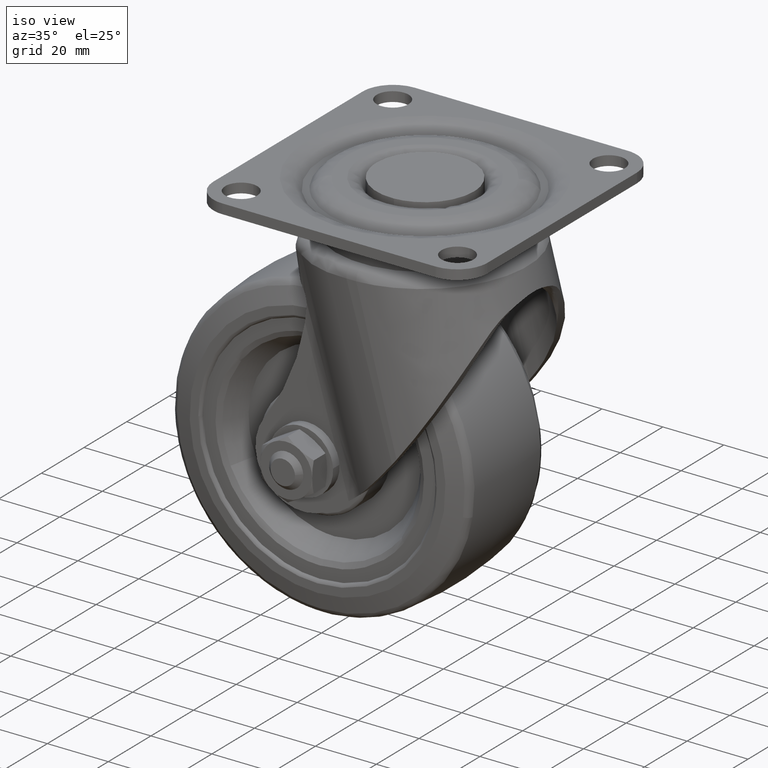
[diagram: clean part render]
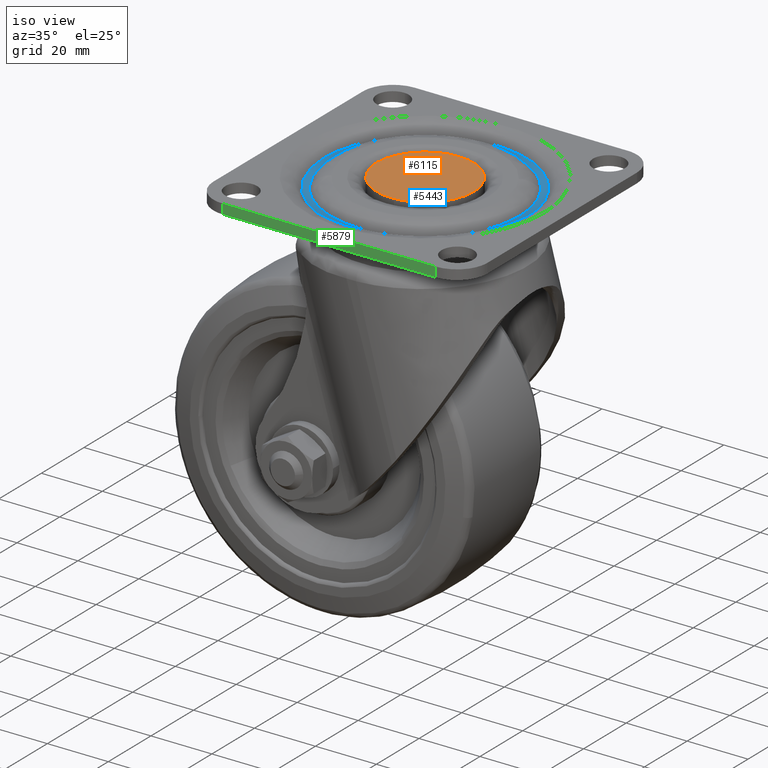
[diagram: same view with three faces highlighted in distinct colors, each labeled with its STEP entity id]
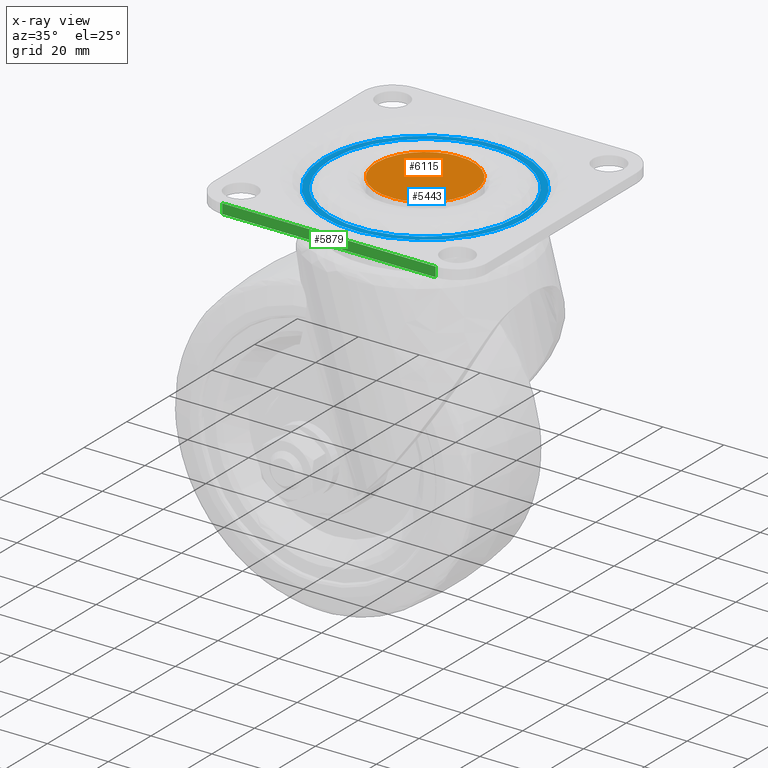
[diagram: x-ray of the same camera — body ghosted, the three highlighted faces saturated]
A machine part, iso view with three faces highlighted in distinct colors.
The next image is the same camera in x-ray (body ghosted, the three faces saturated) — at least one of them is partly hidden behind the body in this view.
Their STEP definitions:

[orange] entity #6115 — the highlighted face is a freeform B-spline surface patch.
#6044=CARTESIAN_POINT('',(-17.598399937977788,-17.598006196946820,0.0));
#6045=CARTESIAN_POINT('',(17.598400796284679,-17.598006196946820,0.0));
#6046=CARTESIAN_POINT('',(-17.598399937977788,17.598005624742228,0.0));
#6047=CARTESIAN_POINT('',(17.598400796284679,17.598005624742228,0.0));
#6048=B_SPLINE_SURFACE_WITH_KNOTS('',1,1,((#6044,#6046),(#6045,#6047)),.UNSPECIFIED.,.F.,.F.,.U.,(2,2),(2,2),(0.0,35.196800734262467),(0.0,35.196011821689048),.UNSPECIFIED.);
#6049=CARTESIAN_POINT('',(0.976776632656301,-15.970156774743840,7.771561E-016));
#6050=VERTEX_POINT('',#6049);
#6051=CARTESIAN_POINT('',(-16.0,0.0,0.0));
#6052=VERTEX_POINT('',#6051);
#6053=CARTESIAN_POINT('',(0.976776632656305,-15.970156774743845,0.0));
#6054=CARTESIAN_POINT('',(0.488844212826857,-15.999999999999998,0.0));
#6055=CARTESIAN_POINT('',(0.0,-16.0,0.0));
#6056=CARTESIAN_POINT('',(-15.999999999999998,-15.999999999999998,0.0));
#6057=CARTESIAN_POINT('',(-16.0,0.0,0.0));
#6065=(BOUNDED_CURVE()B_SPLINE_CURVE(2,(#6053,#6054,#6055,#6056,#6057),.UNSPECIFIED.,.F.,.U.)B_SPLINE_CURVE_WITH_KNOTS((3,2,3),(0.739332962240903,0.750000000000000,1.0),.UNSPECIFIED.)CURVE()GEOMETRIC_REPRESENTATION_ITEM()RATIONAL_B_SPLINE_CURVE((0.976072041670919,0.987502787902134,1.0,0.707106781186548,1.0))REPRESENTATION_ITEM(''));
#6066=EDGE_CURVE('',#6050,#6052,#6065,.T.);
#6067=ORIENTED_EDGE('',*,*,#6066,.F.);
#6068=CARTESIAN_POINT('',(16.0,0.0,0.0));
#6069=VERTEX_POINT('',#6068);
#6070=CARTESIAN_POINT('',(16.0,0.0,0.0));
#6071=CARTESIAN_POINT('',(16.0,-15.051297070398030,0.0));
#6072=CARTESIAN_POINT('',(0.976776632656305,-15.970156774743845,0.0));
#6080=(BOUNDED_CURVE()B_SPLINE_CURVE(2,(#6070,#6071,#6072),.UNSPECIFIED.,.F.,.U.)B_SPLINE_CURVE_WITH_KNOTS((3,3),(0.500000000000000,0.739332962240903),.UNSPECIFIED.)CURVE()GEOMETRIC_REPRESENTATION_ITEM()RATIONAL_B_SPLINE_CURVE((1.0,0.719603993284414,0.976072041670919))REPRESENTATION_ITEM(''));
#6081=EDGE_CURVE('',#6069,#6050,#6080,.T.);
#6082=ORIENTED_EDGE('',*,*,#6081,.F.);
#6083=CARTESIAN_POINT('',(-0.976776632656301,15.970156774743840,7.771561E-016));
#6084=VERTEX_POINT('',#6083);
#6085=CARTESIAN_POINT('',(-0.976776632656300,15.970156774743845,0.0));
#6086=CARTESIAN_POINT('',(-0.488844212826855,15.999999999999998,0.0));
#6087=CARTESIAN_POINT('',(0.0,16.0,0.0));
#6088=CARTESIAN_POINT('',(15.999999999999998,15.999999999999998,0.0));
#6089=CARTESIAN_POINT('',(16.0,0.0,0.0));
#6097=(BOUNDED_CURVE()B_SPLINE_CURVE(2,(#6085,#6086,#6087,#6088,#6089),.UNSPECIFIED.,.F.,.U.)B_SPLINE_CURVE_WITH_KNOTS((3,2,3),(0.239332962240903,0.250000000000000,0.500000000000000),.UNSPECIFIED.)CURVE()GEOMETRIC_REPRESENTATION_ITEM()RATIONAL_B_SPLINE_CURVE((0.976072041670919,0.987502787902134,1.0,0.707106781186548,1.0))REPRESENTATION_ITEM(''));
#6098=EDGE_CURVE('',#6084,#6069,#6097,.T.);
#6099=ORIENTED_EDGE('',*,*,#6098,.F.);
#6100=CARTESIAN_POINT('',(-16.0,0.0,0.0));
#6101=CARTESIAN_POINT('',(-16.0,15.051297070398030,0.0));
#6102=CARTESIAN_POINT('',(-0.976776632656300,15.970156774743845,0.0));
#6110=(BOUNDED_CURVE()B_SPLINE_CURVE(2,(#6100,#6101,#6102),.UNSPECIFIED.,.F.,.U.)B_SPLINE_CURVE_WITH_KNOTS((3,3),(0.0,0.239332962240903),.UNSPECIFIED.)CURVE()GEOMETRIC_REPRESENTATION_ITEM()RATIONAL_B_SPLINE_CURVE((1.0,0.719603993284414,0.976072041670919))REPRESENTATION_ITEM(''));
#6111=EDGE_CURVE('',#6052,#6084,#6110,.T.);
#6112=ORIENTED_EDGE('',*,*,#6111,.F.);
#6113=EDGE_LOOP('',(#6067,#6082,#6099,#6112));
#6114=FACE_OUTER_BOUND('',#6113,.T.);
#6115=ADVANCED_FACE('',(#6114),#6048,.T.);

[blue] entity #5443 — the highlighted face is a freeform B-spline surface patch.
#5196=CARTESIAN_POINT('',(-26.258598482833449,-16.664213323730671,-3.199999999539002));
#5197=VERTEX_POINT('',#5196);
#5211=CARTESIAN_POINT('',(31.100000000000001,0.0,-3.200000000000000));
#5212=VERTEX_POINT('',#5211);
#5213=CARTESIAN_POINT('',(31.100000000000001,0.0,-3.200000000000000));
#5214=CARTESIAN_POINT('',(31.100099852153871,-1.616940139729805,-3.199999999996508));
#5215=CARTESIAN_POINT('',(30.843172785645670,-4.902941261985788,-3.199999999987558));
#5216=CARTESIAN_POINT('',(29.813442720957120,-9.176202850278283,-3.199999999970697));
#5217=CARTESIAN_POINT('',(28.416291401550382,-12.780056420852040,-3.199999999952604));
#5218=CARTESIAN_POINT('',(26.957794119230471,-15.612824798135840,-3.199999999935648));
#5219=CARTESIAN_POINT('',(25.108759989629672,-18.459241092730270,-3.199999999915912));
#5220=CARTESIAN_POINT('',(23.087347106923549,-20.924490407575369,-3.199999999895539));
#5221=CARTESIAN_POINT('',(20.670912111553719,-23.307045553169051,-3.199999999872512));
#5222=CARTESIAN_POINT('',(18.188158892664440,-25.305373712027080,-3.199999999849816));
#5223=CARTESIAN_POINT('',(14.971911621751870,-27.353449195943369,-3.199999999821474));
#5224=CARTESIAN_POINT('',(11.661628456582870,-28.916846232307901,-3.199999999793919));
#5225=CARTESIAN_POINT('',(8.139459744392864,-30.076037731729919,-3.199999999764664));
#5226=CARTESIAN_POINT('',(5.024412168514020,-30.747480845117501,-3.199999999740582));
#5227=CARTESIAN_POINT('',(1.650404587588646,-31.117224548191281,-3.199999999714728));
#5228=CARTESIAN_POINT('',(-2.634485446852739,-31.121669930410771,-3.199999999683089));
#5229=CARTESIAN_POINT('',(-7.189492808593015,-30.398241347030339,-3.199999999650408));
#5230=CARTESIAN_POINT('',(-11.755787535294299,-28.892305349411409,-3.199999999620385));
#5231=CARTESIAN_POINT('',(-15.283880791968519,-27.179998086839571,-3.199999999597588));
#5232=CARTESIAN_POINT('',(-18.522402585556701,-25.069126659438471,-3.199999999578258));
#5233=CARTESIAN_POINT('',(-21.215072017089771,-22.831507330522879,-3.199999999563115));
#5234=CARTESIAN_POINT('',(-23.889707213129519,-20.041166497368192,-3.199999999549262));
#5235=CARTESIAN_POINT('',(-25.448161955419710,-17.941407586488101,-3.199999999542252));
#5236=CARTESIAN_POINT('',(-26.258598482833449,-16.664213323730671,-3.199999999539002));
#5237=B_SPLINE_CURVE_WITH_KNOTS('',3,(#5213,#5214,#5215,#5216,#5217,#5218,#5219,#5220,#5221,#5222,#5223,#5224,#5225,#5226,#5227,#5228,#5229,#5230,#5231,#5232,#5233,#5234,#5235,#5236),.UNSPECIFIED.,.F.,.U.,(4,1,1,1,1,1,1,1,1,1,1,1,1,1,1,1,1,1,1,1,1,4),(0.000000013474960,4.850812037312920,9.858079807327599,13.144146318186070,16.430214439563461,19.403331319671370,23.315307637234930,25.975451886807111,29.574468306490740,32.860529787530112,37.398440415161723,40.528028819288863,43.970496759041197,46.943596819460623,50.699049057607567,56.801682658451632,60.713647347853581,65.095051213833955,68.537578477001588,72.293063222381107,75.579113926627230,80.116980359293976),.UNSPECIFIED.);
#5238=EDGE_CURVE('',#5212,#5197,#5237,.T.);
#5240=CARTESIAN_POINT('',(26.258598482833438,16.664213323730671,-3.199999999539001));
#5241=VERTEX_POINT('',#5240);
#5242=CARTESIAN_POINT('',(26.258598482833449,16.664213323730671,-3.199999999539001));
#5243=CARTESIAN_POINT('',(31.099999999874207,9.035385244310730,-3.199999999769501));
#5244=CARTESIAN_POINT('',(31.100000000000001,0.0,-3.200000000000000));
#5252=(BOUNDED_CURVE()B_SPLINE_CURVE(2,(#5242,#5243,#5244),.UNSPECIFIED.,.F.,.U.)B_SPLINE_CURVE_WITH_KNOTS((3,3),(0.408316457331357,0.500000000000000),.UNSPECIFIED.)CURVE()GEOMETRIC_REPRESENTATION_ITEM()RATIONAL_B_SPLINE_CURVE((0.863956829593996,0.892586048302242,1.0))REPRESENTATION_ITEM(''));
#5253=EDGE_CURVE('',#5241,#5212,#5252,.T.);
#5304=CARTESIAN_POINT('',(-31.100000000000019,0.0,-3.199999999999985));
#5305=VERTEX_POINT('',#5304);
#5306=CARTESIAN_POINT('',(-31.100000000000019,0.0,-3.199999999999985));
#5307=CARTESIAN_POINT('',(-31.100189112836709,1.877749752599173,-3.199999999995945));
#5308=CARTESIAN_POINT('',(-30.777784929012789,5.424502962323964,-3.199999999985908));
#5309=CARTESIAN_POINT('',(-29.505487575257831,10.175999355972291,-3.199999999966257));
#5310=CARTESIAN_POINT('',(-27.537279975991879,14.735086035460119,-3.199999999941870));
#5311=CARTESIAN_POINT('',(-25.037001898360611,18.670296727364089,-3.199999999914838));
#5312=CARTESIAN_POINT('',(-22.299860034069749,21.762311321763779,-3.199999999887912));
#5313=CARTESIAN_POINT('',(-19.795546089462039,24.051779625617058,-3.199999999864414));
#5314=CARTESIAN_POINT('',(-17.076656175109509,26.086676187933879,-3.199999999839851));
#5315=CARTESIAN_POINT('',(-13.219243557958260,28.291496198752629,-3.199999999806717));
#5316=CARTESIAN_POINT('',(-8.666314454252634,30.022125204369161,-3.199999999768648));
#5317=CARTESIAN_POINT('',(-4.097921181224185,30.922814971173992,-3.199999999733448));
#5318=CARTESIAN_POINT('',(0.177651452328989,31.185482785327459,-3.199999999701027));
#5319=CARTESIAN_POINT('',(3.882487533686553,30.937077553854628,-3.199999999674086));
#5320=CARTESIAN_POINT('',(7.831303121715517,30.176769374498502,-3.199999999646480));
#5321=CARTESIAN_POINT('',(11.614672380083761,28.960850681482921,-3.199999999621050));
#5322=CARTESIAN_POINT('',(15.377980139698851,27.134352030595920,-3.199999999597102));
#5323=CARTESIAN_POINT('',(18.344951201095899,25.179077808742040,-3.199999999579314));
#5324=CARTESIAN_POINT('',(20.895332891679999,23.102741420623161,-3.199999999564879));
#5325=CARTESIAN_POINT('',(23.565943760017980,20.453445934026568,-3.199999999550843));
#5326=CARTESIAN_POINT('',(25.336393705486721,18.117586786512462,-3.199999999542631));
#5327=CARTESIAN_POINT('',(26.258598482833438,16.664213323730671,-3.199999999539001));
#5328=B_SPLINE_CURVE_WITH_KNOTS('',3,(#5306,#5307,#5308,#5309,#5310,#5311,#5312,#5313,#5314,#5315,#5316,#5317,#5318,#5319,#5320,#5321,#5322,#5323,#5324,#5325,#5326,#5327),.UNSPECIFIED.,.F.,.U.,(4,1,1,1,1,1,1,1,1,1,1,1,1,1,1,1,1,1,1,4),(0.000000013468082,5.633214244687551,10.640483176520720,14.708960601826041,20.498686923316580,24.567141447738770,27.070806520732820,30.669823209381139,34.738287670695136,40.371489336481140,45.222329493124263,48.664904157129527,53.202680765122309,56.332255552106091,60.713647347852401,65.095051213832960,68.850540289917035,71.354194094077911,74.953196567743703,80.116980359294047),.UNSPECIFIED.);
#5329=EDGE_CURVE('',#5305,#5241,#5328,.T.);
#5331=CARTESIAN_POINT('',(-26.258598482833449,-16.664213323730671,-3.199999999539002));
#5332=CARTESIAN_POINT('',(-31.099999999874221,-9.035385244310728,-3.199999999769494));
#5333=CARTESIAN_POINT('',(-31.100000000000019,0.0,-3.199999999999985));
#5341=(BOUNDED_CURVE()B_SPLINE_CURVE(2,(#5331,#5332,#5333),.UNSPECIFIED.,.F.,.U.)B_SPLINE_CURVE_WITH_KNOTS((3,3),(0.908316457331357,1.0),.UNSPECIFIED.)CURVE()GEOMETRIC_REPRESENTATION_ITEM()RATIONAL_B_SPLINE_CURVE((0.863956829593996,0.892586048302242,1.0))REPRESENTATION_ITEM(''));
#5342=EDGE_CURVE('',#5197,#5305,#5341,.T.);
#5348=CARTESIAN_POINT('',(36.571674871110091,-36.560125341814917,-3.200000000000000));
#5349=CARTESIAN_POINT('',(-36.571676654779061,-36.560125341814917,-3.200000000000000));
#5350=CARTESIAN_POINT('',(36.571674871110091,36.560124747446302,-3.200000000000000));
#5351=CARTESIAN_POINT('',(-36.571676654779061,36.560124747446302,-3.200000000000000));
#5352=B_SPLINE_SURFACE_WITH_KNOTS('',1,1,((#5348,#5350),(#5349,#5351)),.UNSPECIFIED.,.F.,.F.,.U.,(2,2),(2,2),(0.0,73.143351525889159),(0.0,73.120250089261219),.UNSPECIFIED.);
#5353=CARTESIAN_POINT('',(28.073903523332060,-17.816240933345782,-3.199999999246640));
#5354=VERTEX_POINT('',#5353);
#5355=CARTESIAN_POINT('',(-33.249999999999979,0.0,-3.199999999999988));
#5356=VERTEX_POINT('',#5355);
#5357=CARTESIAN_POINT('',(28.073903523332060,-17.816240933345782,-3.199999999246640));
#5358=CARTESIAN_POINT('',(26.789399998164249,-19.841150998333109,-3.199999999254557));
#5359=CARTESIAN_POINT('',(24.724313903668961,-22.427155252280290,-3.199999999269373));
#5360=CARTESIAN_POINT('',(21.412502999492649,-25.504240035139471,-3.199999999296805));
#5361=CARTESIAN_POINT('',(18.351965480540191,-27.846079543494291,-3.199999999323821));
#5362=CARTESIAN_POINT('',(14.079773966131929,-30.290961017880932,-3.199999999364044));
#5363=CARTESIAN_POINT('',(8.880709650537755,-32.210906099151273,-3.199999999416805));
#5364=CARTESIAN_POINT('',(3.983335558399222,-33.115385884443050,-3.199999999469065));
#5365=CARTESIAN_POINT('',(-0.535001046754963,-33.327037135593613,-3.199999999519854));
#5366=CARTESIAN_POINT('',(-4.325367850008117,-33.046259633909649,-3.199999999563473));
#5367=CARTESIAN_POINT('',(-8.710069227684272,-32.193196828277237,-3.199999999616048));
#5368=CARTESIAN_POINT('',(-12.845520486398881,-30.797369693390660,-3.199999999667528));
#5369=CARTESIAN_POINT('',(-17.375642548504469,-28.488170629085442,-3.199999999726217));
#5370=CARTESIAN_POINT('',(-21.391040127356462,-25.637677651591261,-3.199999999781634));
#5371=CARTESIAN_POINT('',(-24.784277089020929,-22.308655319918770,-3.199999999830382));
#5372=CARTESIAN_POINT('',(-27.779444706862890,-18.482497972097129,-3.199999999877289));
#5373=CARTESIAN_POINT('',(-30.007628860896190,-14.597632904334180,-3.199999999915506));
#5374=CARTESIAN_POINT('',(-31.827786325266690,-9.971329316523816,-3.199999999949974));
#5375=CARTESIAN_POINT('',(-32.966533544265133,-5.297650855911198,-3.199999999982322));
#5376=CARTESIAN_POINT('',(-33.250105238039751,-1.784470406887780,-3.199999999990946));
#5377=CARTESIAN_POINT('',(-33.249999999999979,0.0,-3.199999999999988));
#5378=B_SPLINE_CURVE_WITH_KNOTS('',3,(#5357,#5358,#5359,#5360,#5361,#5362,#5363,#5364,#5365,#5366,#5367,#5368,#5369,#5370,#5371,#5372,#5373,#5374,#5375,#5376,#5377),.UNSPECIFIED.,.F.,.U.,(4,1,1,1,1,1,1,1,1,1,1,1,1,1,1,1,1,1,4),(0.000000173121720,7.193734660270380,9.870484881462232,13.551016957687350,18.737172785361370,24.592603588019099,30.113377960737360,33.626426093902097,38.143513361512468,41.489419962754482,47.010152658015592,51.192592303202822,56.713374137821582,61.732274969347252,65.412791321728022,71.268160672734112,75.115972163428665,80.302212511630245,85.655614050371170),.UNSPECIFIED.);
#5379=EDGE_CURVE('',#5354,#5356,#5378,.T.);
#5380=ORIENTED_EDGE('',*,*,#5379,.F.);
#5381=CARTESIAN_POINT('',(33.250000000000000,0.0,-3.200000000000000));
#5382=VERTEX_POINT('',#5381);
#5383=CARTESIAN_POINT('',(33.250000000000000,0.0,-3.200000000000000));
#5384=CARTESIAN_POINT('',(33.250000000205560,-9.660017986488017,-3.199999999623321));
#5385=CARTESIAN_POINT('',(28.073903523332064,-17.816240933345775,-3.199999999246640));
#5393=(BOUNDED_CURVE()B_SPLINE_CURVE(2,(#5383,#5384,#5385),.UNSPECIFIED.,.F.,.U.)B_SPLINE_CURVE_WITH_KNOTS((3,3),(0.500000000000000,0.591683542668571),.UNSPECIFIED.)CURVE()GEOMETRIC_REPRESENTATION_ITEM()RATIONAL_B_SPLINE_CURVE((1.0,0.892586048302327,0.863956829594041))REPRESENTATION_ITEM(''));
#5394=EDGE_CURVE('',#5382,#5354,#5393,.T.);
#5395=ORIENTED_EDGE('',*,*,#5394,.F.);
#5396=CARTESIAN_POINT('',(-28.073903523332060,17.816240933345789,-3.199999999246639));
#5397=VERTEX_POINT('',#5396);
#5398=CARTESIAN_POINT('',(-28.073903523332060,17.816240933345789,-3.199999999246639));
#5399=CARTESIAN_POINT('',(-27.028241398243619,19.464305092136598,-3.199999999253046));
#5400=CARTESIAN_POINT('',(-25.190009072165982,21.864181094387011,-3.199999999265994));
#5401=CARTESIAN_POINT('',(-22.217392159198720,24.813088360102991,-3.199999999289938));
#5402=CARTESIAN_POINT('',(-18.876105410323358,27.519638277104651,-3.199999999318948));
#5403=CARTESIAN_POINT('',(-14.973173143301020,29.832089684477889,-3.199999999355438));
#5404=CARTESIAN_POINT('',(-10.881433816460140,31.484728887909430,-3.199999999396456));
#5405=CARTESIAN_POINT('',(-6.909007664619733,32.619654071506261,-3.199999999437698));
#5406=CARTESIAN_POINT('',(-2.041020064848415,33.355398336571263,-3.199999999490334));
#5407=CARTESIAN_POINT('',(3.614128842067587,33.221707396560653,-3.199999999554944));
#5408=CARTESIAN_POINT('',(9.155152415662979,32.114529933515541,-3.199999999621339));
#5409=CARTESIAN_POINT('',(13.608697220688279,30.447188024014380,-3.199999999677269));
#5410=CARTESIAN_POINT('',(17.448725156438741,28.391225494205379,-3.199999999727569));
#5411=CARTESIAN_POINT('',(21.165580375878410,25.808723611676740,-3.199999999778095));
#5412=CARTESIAN_POINT('',(24.579832791980230,22.575159569978229,-3.199999999827525));
#5413=CARTESIAN_POINT('',(27.782411862522480,18.483864831191489,-3.199999999877247));
#5414=CARTESIAN_POINT('',(30.055804169201888,14.497003554025580,-3.199999999916102));
#5415=CARTESIAN_POINT('',(31.905266609854579,9.761384393172172,-3.199999999952612));
#5416=CARTESIAN_POINT('',(32.997362440268461,5.074597731174944,-3.199999999980491));
#5417=CARTESIAN_POINT('',(33.250054290215481,1.617166440619170,-3.199999999994620));
#5418=CARTESIAN_POINT('',(33.250000000000000,0.0,-3.200000000000000));
#5419=B_SPLINE_CURVE_WITH_KNOTS('',3,(#5398,#5399,#5400,#5401,#5402,#5403,#5404,#5405,#5406,#5407,#5408,#5409,#5410,#5411,#5412,#5413,#5414,#5415,#5416,#5417,#5418),.UNSPECIFIED.,.F.,.U.,(4,1,1,1,1,1,1,1,1,1,1,1,1,1,1,1,1,1,4),(0.000000172715090,5.855358867923329,9.033999873540552,12.547215715727720,18.737172785043370,22.584981614374811,25.763635955104888,31.117158191158769,37.307031787280003,42.660481933750553,48.013985748017816,51.527173058419287,55.709608847744548,61.564984997155221,65.580108633977872,71.268160672666056,75.283317515750014,80.804106680873275,85.655614050372009),.UNSPECIFIED.);
#5420=EDGE_CURVE('',#5397,#5382,#5419,.T.);
#5421=ORIENTED_EDGE('',*,*,#5420,.F.);
#5422=CARTESIAN_POINT('',(-33.249999999999979,0.0,-3.199999999999988));
#5423=CARTESIAN_POINT('',(-33.250000000205560,9.660017986488022,-3.199999999623313));
#5424=CARTESIAN_POINT('',(-28.073903523332053,17.816240933345785,-3.199999999246639));
#5432=(BOUNDED_CURVE()B_SPLINE_CURVE(2,(#5422,#5423,#5424),.UNSPECIFIED.,.F.,.U.)B_SPLINE_CURVE_WITH_KNOTS((3,3),(0.0,0.091683542668571),.UNSPECIFIED.)CURVE()GEOMETRIC_REPRESENTATION_ITEM()RATIONAL_B_SPLINE_CURVE((1.0,0.892586048302327,0.863956829594041))REPRESENTATION_ITEM(''));
#5433=EDGE_CURVE('',#5356,#5397,#5432,.T.);
#5434=ORIENTED_EDGE('',*,*,#5433,.F.);
#5435=EDGE_LOOP('',(#5380,#5395,#5421,#5434));
#5436=FACE_OUTER_BOUND('',#5435,.T.);
#5437=ORIENTED_EDGE('',*,*,#5329,.T.);
#5438=ORIENTED_EDGE('',*,*,#5253,.T.);
#5439=ORIENTED_EDGE('',*,*,#5238,.T.);
#5440=ORIENTED_EDGE('',*,*,#5342,.T.);
#5441=EDGE_LOOP('',(#5437,#5438,#5439,#5440));
#5442=FACE_BOUND('',#5441,.T.);
#5443=ADVANCED_FACE('',(#5436,#5442),#5352,.F.);

[green] entity #5879 — the highlighted face is a freeform B-spline surface patch.
#5662=CARTESIAN_POINT('',(35.0,-45.0,-3.200000000000000));
#5663=VERTEX_POINT('',#5662);
#5677=CARTESIAN_POINT('',(-35.0,-45.0,-3.200000000000000));
#5678=VERTEX_POINT('',#5677);
#5679=CARTESIAN_POINT('',(-35.0,-45.0,-3.200000000000000));
#5680=CARTESIAN_POINT('',(35.0,-45.0,-3.200000000000000));
#5681=QUASI_UNIFORM_CURVE('',1,(#5679,#5680),.UNSPECIFIED.,.F.,.U.);
#5682=EDGE_CURVE('',#5678,#5663,#5681,.T.);
#5833=CARTESIAN_POINT('',(35.0,-45.0,0.0));
#5834=VERTEX_POINT('',#5833);
#5848=CARTESIAN_POINT('',(35.0,-45.0,-3.200000000000000));
#5849=CARTESIAN_POINT('',(35.0,-45.0,0.0));
#5850=QUASI_UNIFORM_CURVE('',1,(#5848,#5849),.UNSPECIFIED.,.F.,.U.);
#5851=EDGE_CURVE('',#5663,#5834,#5850,.T.);
#5858=CARTESIAN_POINT('',(-38.496499864326417,-45.0,-3.359839993797780));
#5859=CARTESIAN_POINT('',(38.496501741872727,-45.0,-3.359839993797780));
#5860=CARTESIAN_POINT('',(-38.496499864326417,-45.0,0.159840079628467));
#5861=CARTESIAN_POINT('',(38.496501741872727,-45.0,0.159840079628467));
#5862=B_SPLINE_SURFACE_WITH_KNOTS('',1,1,((#5858,#5860),(#5859,#5861)),.UNSPECIFIED.,.F.,.F.,.U.,(2,2),(2,2),(0.0,76.993001606199158),(0.0,3.519680073426247),.UNSPECIFIED.);
#5863=CARTESIAN_POINT('',(-35.0,-45.0,0.0));
#5864=VERTEX_POINT('',#5863);
#5865=CARTESIAN_POINT('',(-35.0,-45.0,0.0));
#5866=CARTESIAN_POINT('',(35.0,-45.0,0.0));
#5867=QUASI_UNIFORM_CURVE('',1,(#5865,#5866),.UNSPECIFIED.,.F.,.U.);
#5868=EDGE_CURVE('',#5864,#5834,#5867,.T.);
#5869=ORIENTED_EDGE('',*,*,#5868,.F.);
#5870=CARTESIAN_POINT('',(-35.0,-45.0,-3.200000000000000));
#5871=CARTESIAN_POINT('',(-35.0,-45.0,0.0));
#5872=QUASI_UNIFORM_CURVE('',1,(#5870,#5871),.UNSPECIFIED.,.F.,.U.);
#5873=EDGE_CURVE('',#5678,#5864,#5872,.T.);
#5874=ORIENTED_EDGE('',*,*,#5873,.F.);
#5875=ORIENTED_EDGE('',*,*,#5682,.T.);
#5876=ORIENTED_EDGE('',*,*,#5851,.T.);
#5877=EDGE_LOOP('',(#5869,#5874,#5875,#5876));
#5878=FACE_OUTER_BOUND('',#5877,.T.);
#5879=ADVANCED_FACE('',(#5878),#5862,.T.);